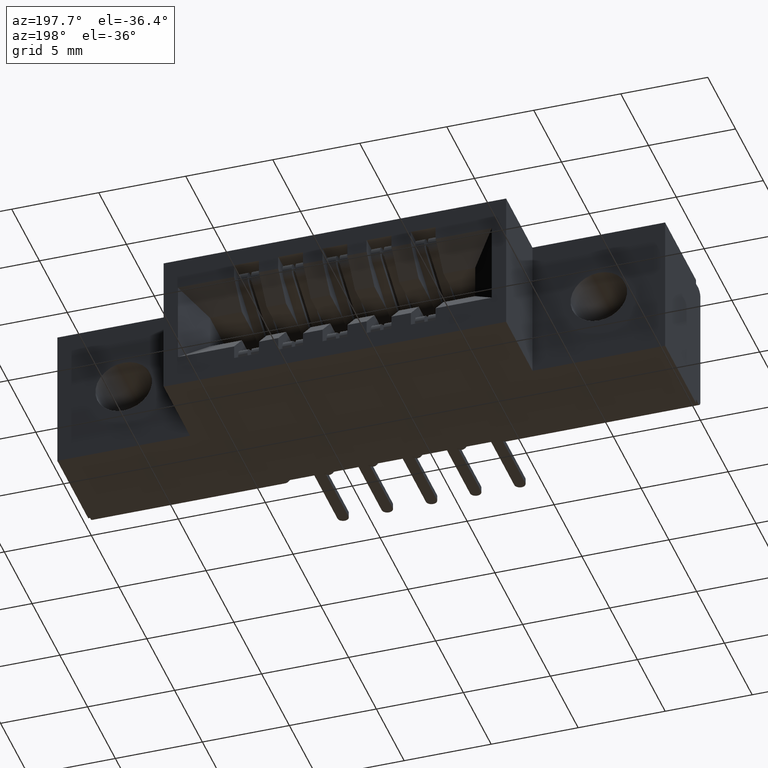
[diagram: clean part render]
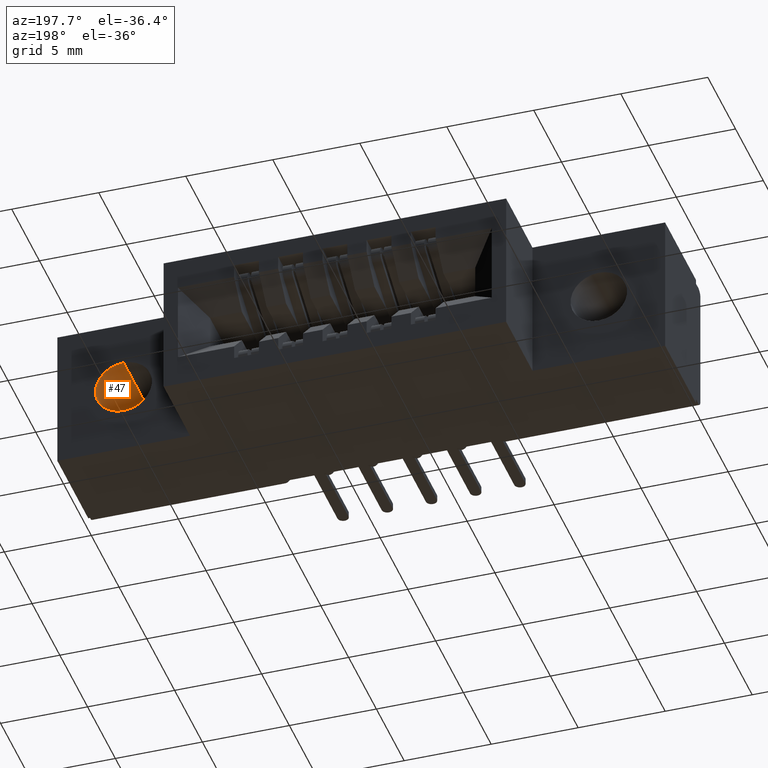
[diagram: same view with one face highlighted and labeled with its STEP entity id]
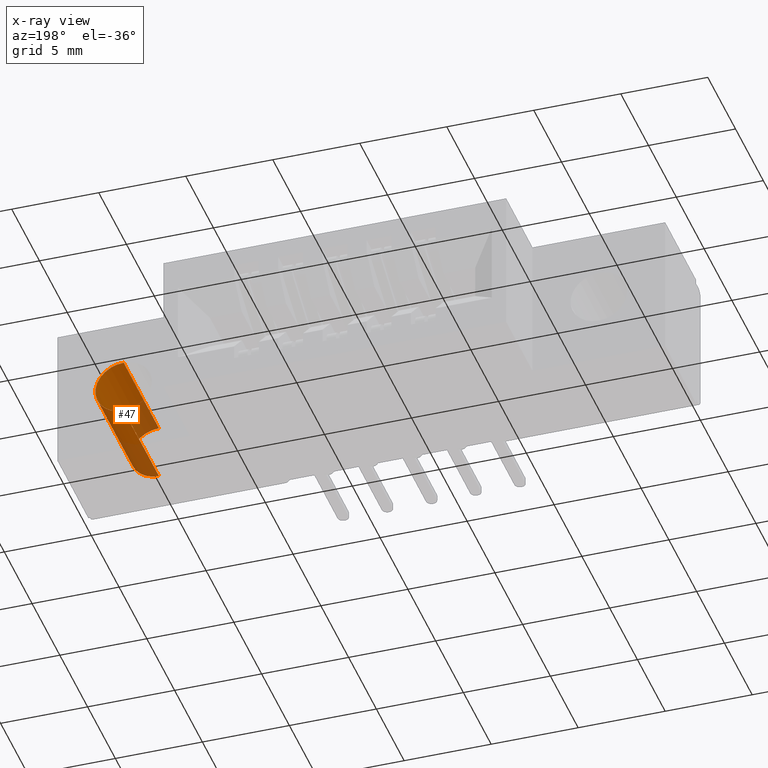
[diagram: x-ray of the same camera — body ghosted, the highlighted face saturated]
A machine part, auxiliary view. The second image highlights one B-rep face of the part: STEP entity #47.
The next image is the same camera in x-ray: the body ghosted, the highlighted face saturated — about 38% of this face is hidden behind the body in this view.
In plain terms, the highlighted cylindrical surface (edge-blend (fillet) strip) has radius 1.6256 mm, axis along (0, 1, 0).
Its self-contained STEP definition (entity closure, byte-faithful):
#47 = ADVANCED_FACE ( 'NONE', ( #8356 ), #1409, .F. ) ;
#123 = EDGE_CURVE ( 'NONE', #7427, #7882, #9646, .T. ) ;
#778 = CIRCLE ( 'NONE', #3838, 0.06399999999999984900 ) ;
#1324 = EDGE_LOOP ( 'NONE', ( #3089, #3240, #3293, #3336 ) ) ;
#1409 = CYLINDRICAL_SURFACE ( 'NONE', #9207, 0.06399999999999984900 ) ;
#1639 = LINE ( 'NONE', #2561, #10038 ) ;
#2402 = CARTESIAN_POINT ( 'NONE',  ( 1.225000000000000100, 0.0000000000000000000, -0.2290000000000000100 ) ) ;
#2561 = CARTESIAN_POINT ( 'NONE',  ( 1.225000000000000100, -3.937007874016271000E-005, -0.1010000000000003000 ) ) ;
#2652 = DIRECTION ( 'NONE',  ( -0.0000000000000000000, 1.000000000000000000, -0.0000000000000000000 ) ) ;
#2750 = DIRECTION ( 'NONE',  ( 0.0000000000000000000, 0.0000000000000000000, -1.000000000000000000 ) ) ;
#2812 = DIRECTION ( 'NONE',  ( 0.0000000000000000000, 1.000000000000000000, -0.0000000000000000000 ) ) ;
#2824 = CARTESIAN_POINT ( 'NONE',  ( 1.225000000000000100, 0.2500000000000000000, -0.1650000000000001500 ) ) ;
#3069 = EDGE_CURVE ( 'NONE', #5146, #7908, #1639, .T. ) ;
#3089 = ORIENTED_EDGE ( 'NONE', *, *, #123, .F. ) ;
#3240 = ORIENTED_EDGE ( 'NONE', *, *, #3755, .F. ) ;
#3253 = CARTESIAN_POINT ( 'NONE',  ( 1.225000000000000100, 0.2500000000000000000, -0.1010000000000002800 ) ) ;
#3293 = ORIENTED_EDGE ( 'NONE', *, *, #3069, .T. ) ;
#3321 = AXIS2_PLACEMENT_3D ( 'NONE', #2824, #2812, #2750 ) ;
#3336 = ORIENTED_EDGE ( 'NONE', *, *, #4326, .T. ) ;
#3755 = EDGE_CURVE ( 'NONE', #5146, #7427, #778, .T. ) ;
#3838 = AXIS2_PLACEMENT_3D ( 'NONE', #7123, #7101, #7080 ) ;
#4120 = VECTOR ( 'NONE', #9100, 39.37007874015748100 ) ;
#4326 = EDGE_CURVE ( 'NONE', #7908, #7882, #7795, .T. ) ;
#5146 = VERTEX_POINT ( 'NONE', #8396 ) ;
#6602 = DIRECTION ( 'NONE',  ( 0.0000000000000000000, 0.0000000000000000000, 1.000000000000000000 ) ) ;
#7080 = DIRECTION ( 'NONE',  ( 0.0000000000000000000, 0.0000000000000000000, -1.000000000000000000 ) ) ;
#7101 = DIRECTION ( 'NONE',  ( -0.0000000000000000000, 1.000000000000000000, -0.0000000000000000000 ) ) ;
#7123 = CARTESIAN_POINT ( 'NONE',  ( 1.225000000000000100, 0.0000000000000000000, -0.1650000000000001500 ) ) ;
#7427 = VERTEX_POINT ( 'NONE', #2402 ) ;
#7795 = CIRCLE ( 'NONE', #3321, 0.06399999999999984900 ) ;
#7882 = VERTEX_POINT ( 'NONE', #9838 ) ;
#7908 = VERTEX_POINT ( 'NONE', #3253 ) ;
#8356 = FACE_OUTER_BOUND ( 'NONE', #1324, .T. ) ;
#8396 = CARTESIAN_POINT ( 'NONE',  ( 1.225000000000000100, 0.0000000000000000000, -0.1010000000000002800 ) ) ;
#8858 = CARTESIAN_POINT ( 'NONE',  ( 1.225000000000000100, -3.937007874016271000E-005, -0.1650000000000001500 ) ) ;
#9100 = DIRECTION ( 'NONE',  ( -0.0000000000000000000, 1.000000000000000000, -0.0000000000000000000 ) ) ;
#9207 = AXIS2_PLACEMENT_3D ( 'NONE', #8858, #2652, #6602 ) ;
#9243 = DIRECTION ( 'NONE',  ( -0.0000000000000000000, 1.000000000000000000, -0.0000000000000000000 ) ) ;
#9646 = LINE ( 'NONE', #9919, #4120 ) ;
#9838 = CARTESIAN_POINT ( 'NONE',  ( 1.225000000000000100, 0.2500000000000000000, -0.2290000000000000100 ) ) ;
#9919 = CARTESIAN_POINT ( 'NONE',  ( 1.225000000000000100, -3.937007874016271000E-005, -0.2290000000000000100 ) ) ;
#10038 = VECTOR ( 'NONE', #9243, 39.37007874015748100 ) ;